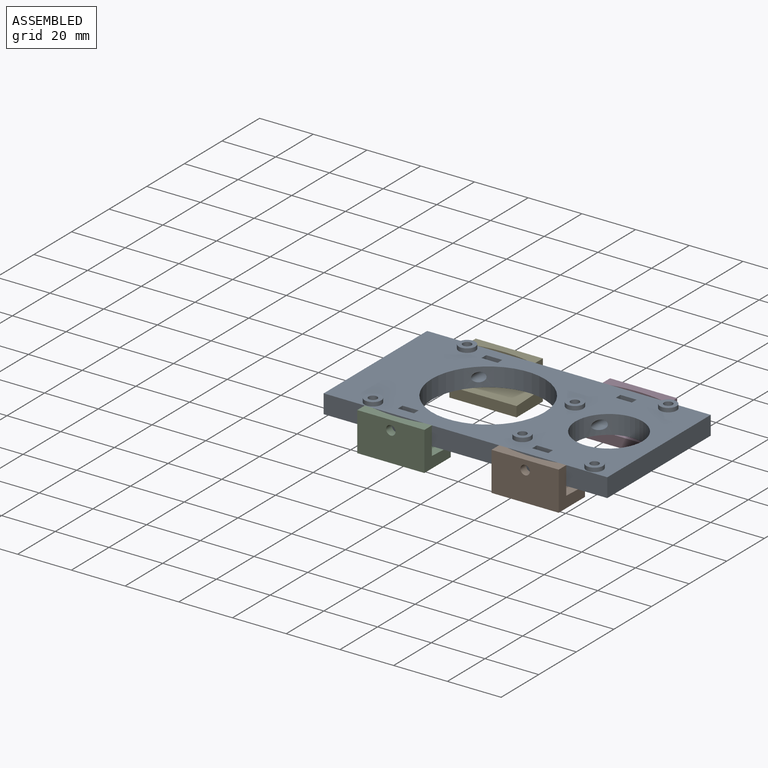
[diagram: assembled view]
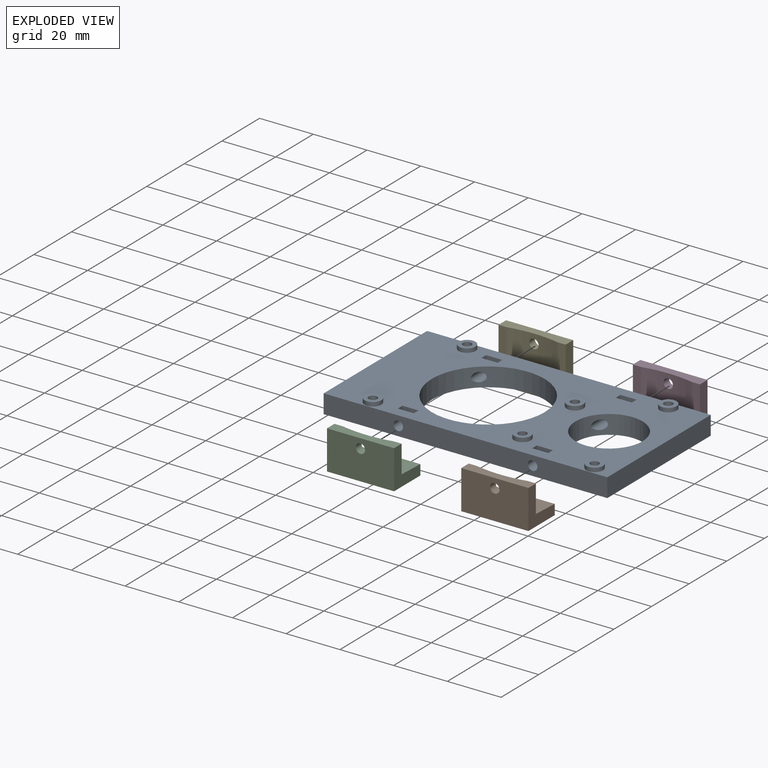
[diagram: exploded view]
GUIDED TOUR — MATED ASSEMBLY (Onshape document 38e5f879f7167fd461e94f2d, AutoMate assembly 38e5f879f7167fd461e94f2d_ed4562f7a92f10df959cbdb5_5030c0e394af5ca3f99093f5_default)

This assembly has 5 components, labeled P0..P4 below (a component is one placed occurrence of a part; the same part can appear more than once), held together by 4 mates. A mate is a constraint between two components; its type names the relative motion it leaves free:
  FASTENED — locks the two components together rigidly (no relative motion).
Axis/direction vectors are unit vectors and 'through' points are millimeter coordinates, both in the assembly's world frame.

MATES
  1. FASTENED "Fastened 1": P1 <-> P0, direction (0.000, -1.000, 0.000) through (67.82, -24.13, 6.29) mm
  2. FASTENED "Fastened 2": P2 <-> P0, direction (0.000, -1.000, 0.000) through (17.82, -24.13, 6.29) mm
  3. FASTENED "Fastened 3": P4 <-> P0, direction (0.000, 1.000, 0.000) through (17.82, 38.87, 6.29) mm
  4. FASTENED "Fastened 4": P3 <-> P0, direction (0.000, 1.000, 0.000) through (67.82, 38.87, 6.29) mm

ASSEMBLY ORDER
  1. P4 — the base component [order verified]
  2. P3 [order verified]
  3. P2 [order verified]
  4. P1 [order verified]
  5. P0 [order verified]
Order-tag legend:
  [order verified] — this step's position reverses a verified removal order: the component was checked to insert without passing through the ones already placed.

Of the 5 components, 5 carry the full construction recipe — the FeatureScript program that regenerates the part's solid from scratch; the rest are supplied as boundary geometry only.
Each toured component is shown spotlighted twice — in the assembled view, then in the exploded view, where a leader line traces a displaced component back to its assembled socket (saturated green if recipe-attached, orange if geometry-only; every other component desaturated gray) — followed by its recipe or geometry summary and the mates that hold it.
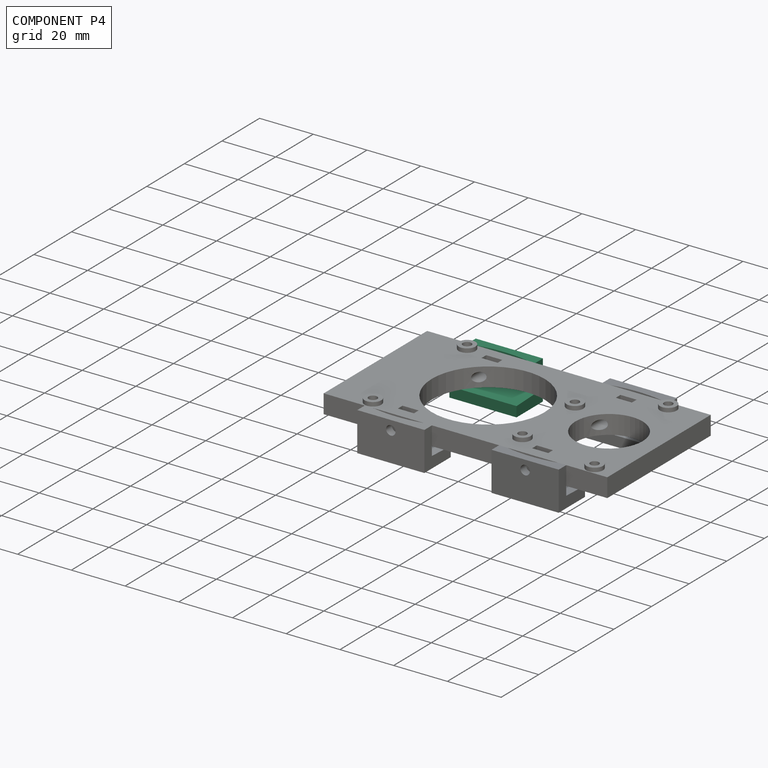
[diagram: component P4 — assembled]
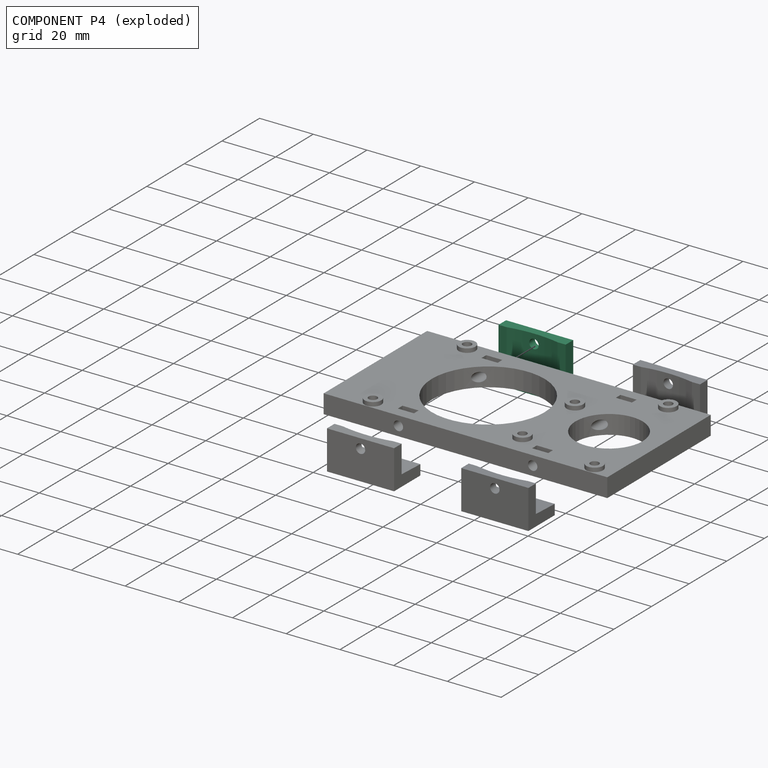
[diagram: component P4 — exploded]
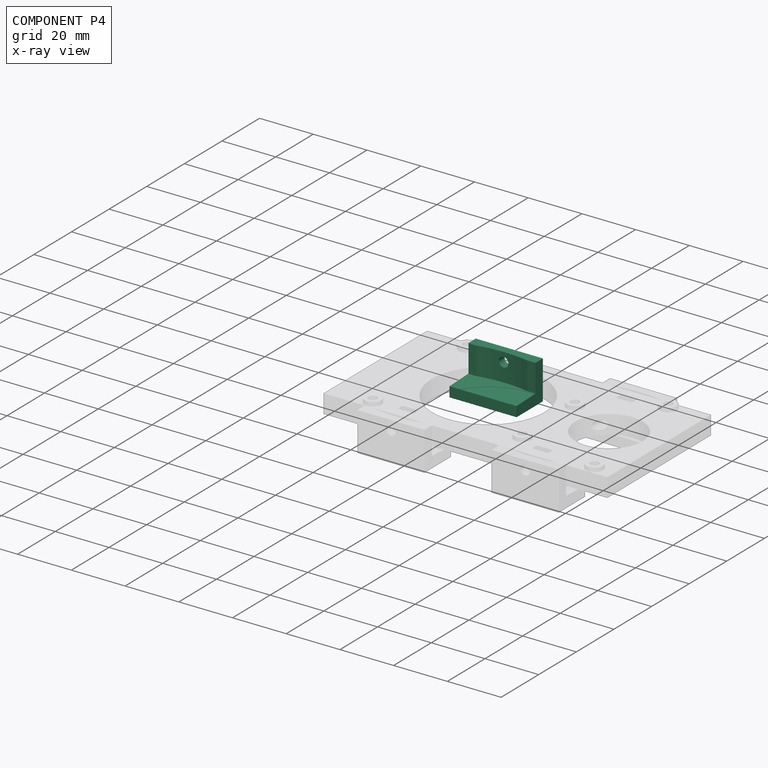
[diagram: component P4 — x-ray view]
COMPONENT P4 — same part as P1 (CADFS 00325363); its construction recipe is shown at P1.
Held by: FASTENED mate "Fastened 3" to P0.
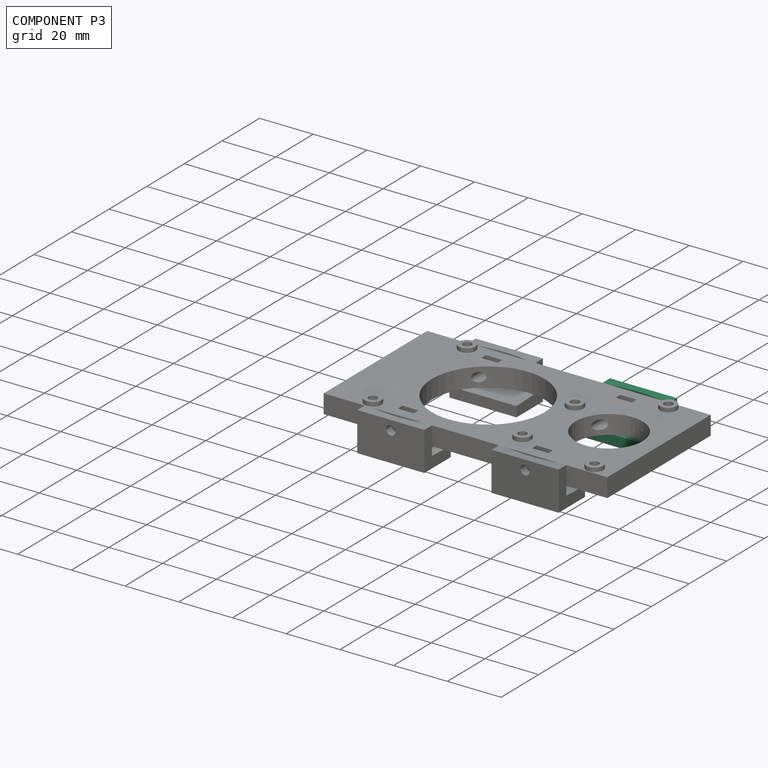
[diagram: component P3 — assembled]
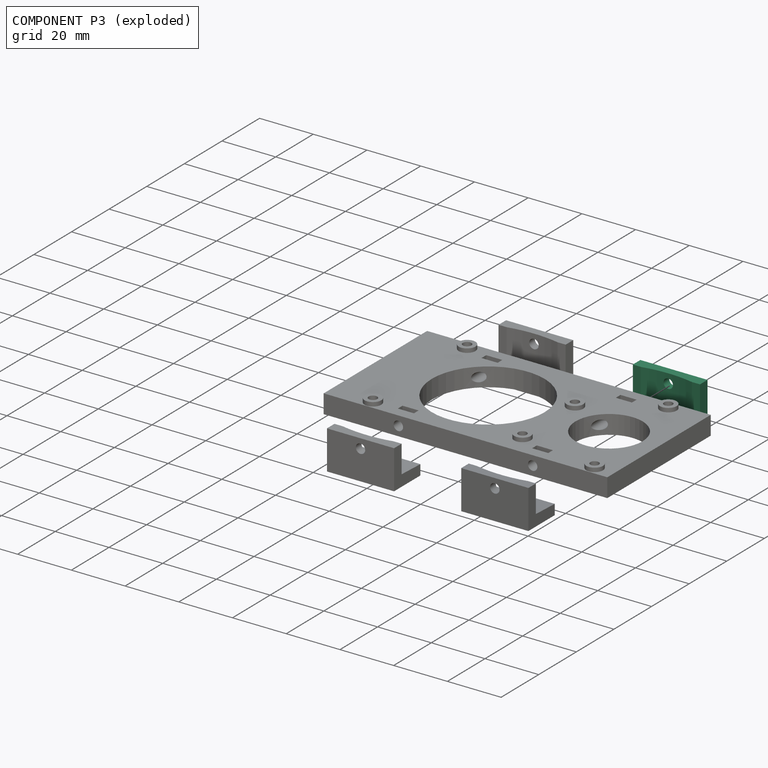
[diagram: component P3 — exploded]
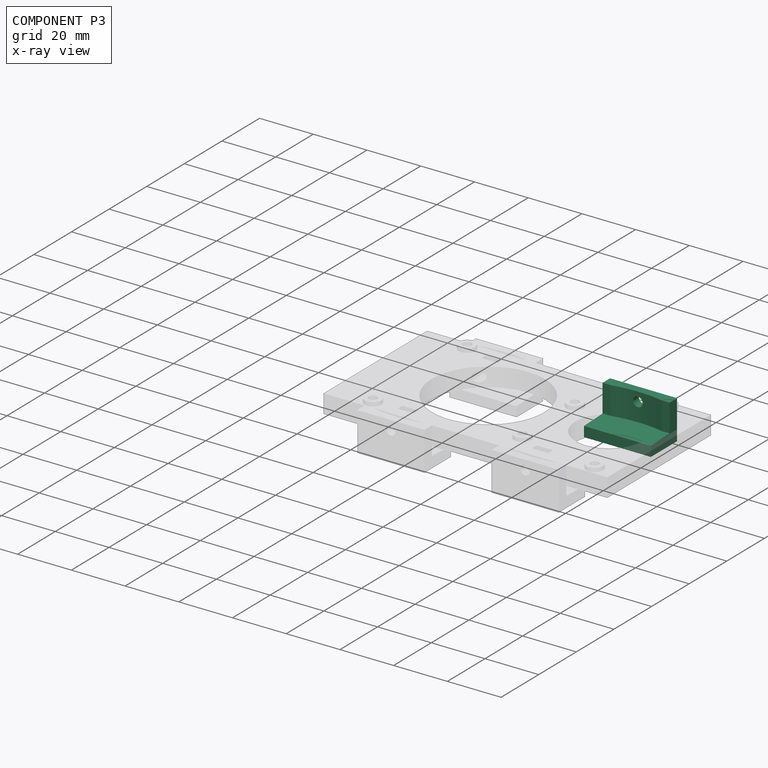
[diagram: component P3 — x-ray view]
COMPONENT P3 — same part as P1 (CADFS 00325363); its construction recipe is shown at P1.
Held by: FASTENED mate "Fastened 4" to P0.
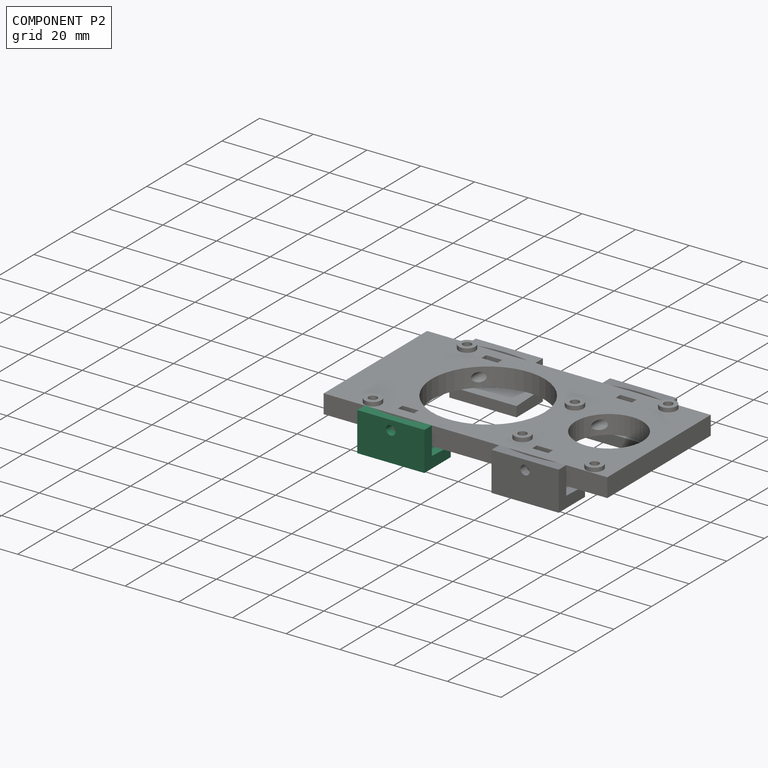
[diagram: component P2 — assembled]
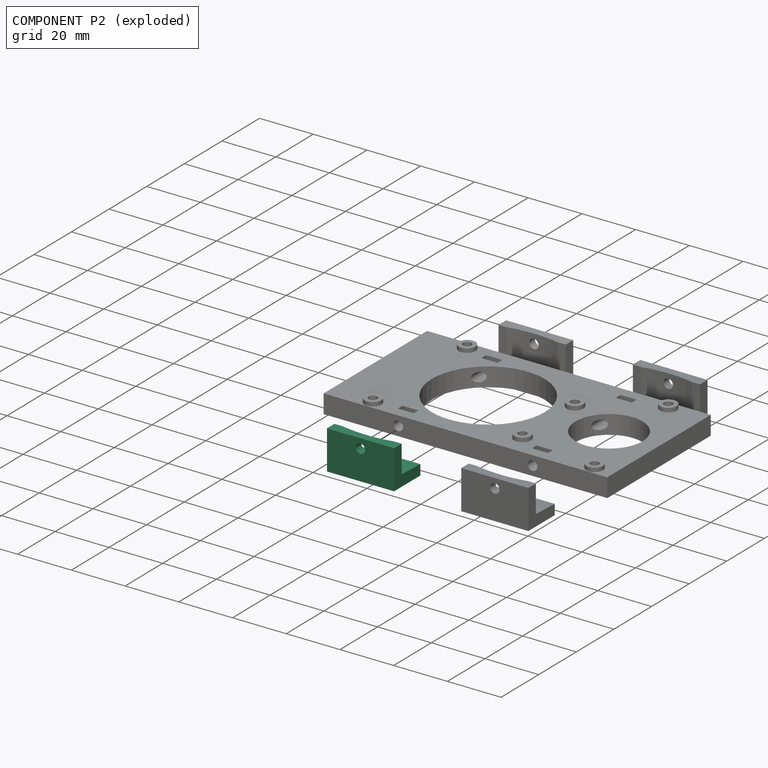
[diagram: component P2 — exploded]
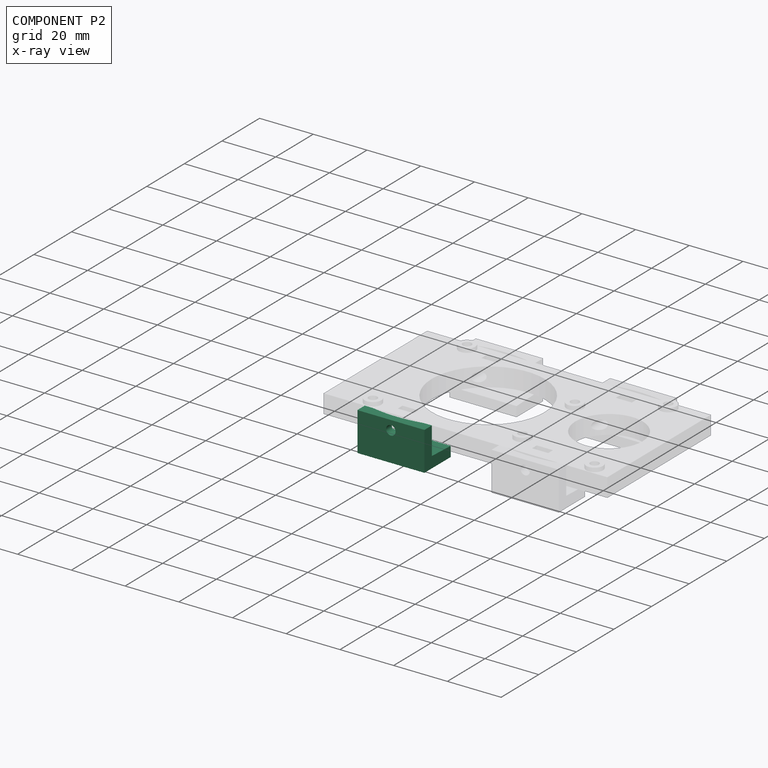
[diagram: component P2 — x-ray view]
COMPONENT P2 — same part as P1 (CADFS 00325363); its construction recipe is shown at P1.
Held by: FASTENED mate "Fastened 2" to P0.
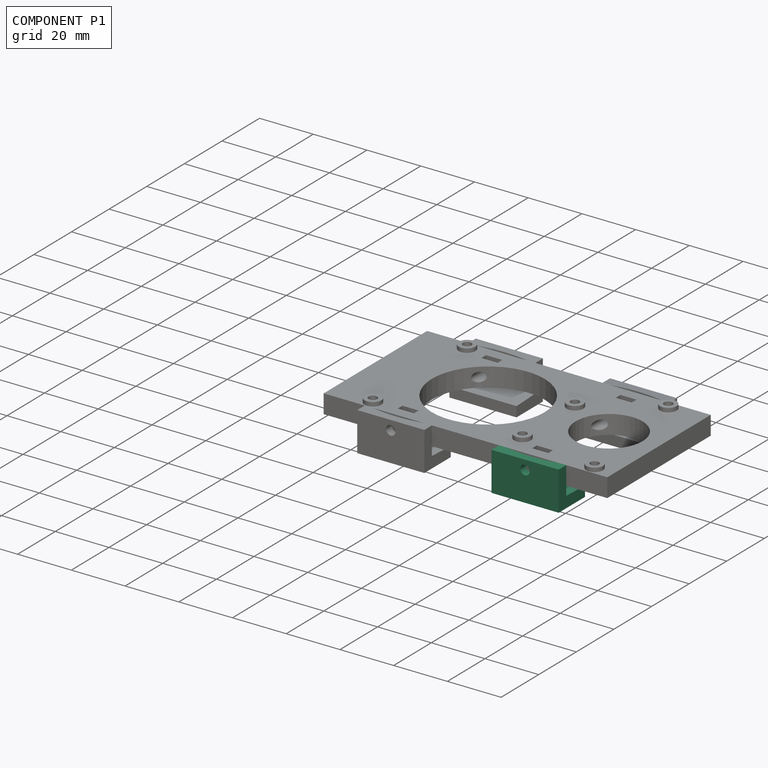
[diagram: component P1 — assembled]
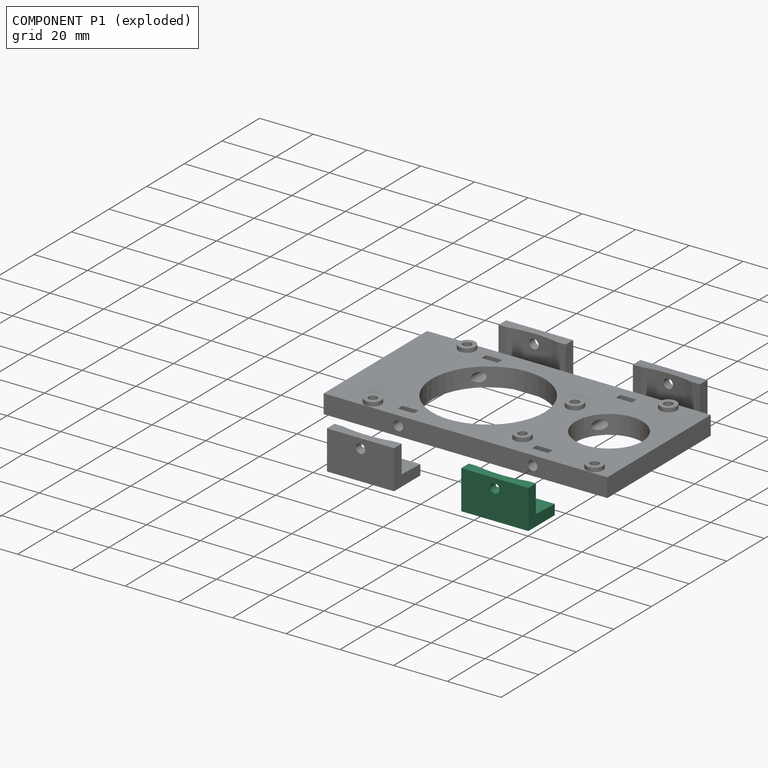
[diagram: component P1 — exploded]
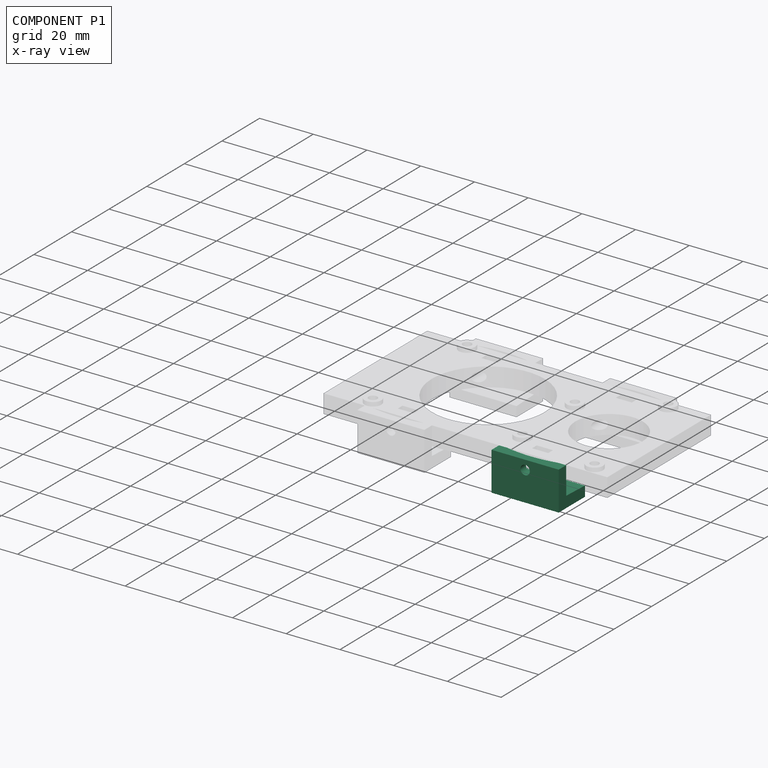
[diagram: component P1 — x-ray view]
COMPONENT P1 — recipe-attached (CADFS 00325363, mesh-verified: the recipe's output STEP matches this component's geometry to below the mesh-comparison resolution (tessellation chordal tolerance ~0.0482 mm)).
Held by: FASTENED mate "Fastened 1" to P0.
Construction recipe (FeatureScript — the CAD program that rebuilds this solid; sketch coordinates are in the units given by the * unit suffixes, e.g. mm):

FeatureScript 1511;
import(path : "onshape/std/geometry.fs", version : "1511.0");
import(path : "onshape/std/common.fs", version : "1511.0");
const mm = millimeter;
const VERTEX = EntityType.VERTEX;
const EDGE = EntityType.EDGE;
const FACE = EntityType.FACE;
const BODY = EntityType.BODY;
function v(x, y){return vector(x, y);}
function OD(order){return orderDisambiguation(order);}
function OSD(set){return originalSetDisambiguation(set);}
function TD(topology){return topologyDisambiguation(topology);}
function TDD(query){return trueDependencyDisambiguation(query);}
function sQuery(a, b, c) {return sketchEntityQuery(a, b, c);}

annotation { "Feature Type Name" : "Feature", "Feature Type Description" : "" }
export const myFeature = defineFeature(function(context is Context, id is Id, definition is map)
    precondition{}
    {
        {
            var Q0;
            Q0=qCreatedBy(makeId("Front.planeOp"),FACE);
            var sketch = newSketch(context, id + "F0", { "sketchPlane" : qUnion([Q0])});
            skLineSegment(sketch, "E0", {"start": v(0, 0) * mm, "end": v(0, 14.5) * mm});
            skLineSegment(sketch, "E1", {"start": v(0, 14.5) * mm, "end": v(4, 14.5) * mm});
            skLineSegment(sketch, "E2", {"start": v(4, 14.5) * mm, "end": v(4, 4.2) * mm});
            skLineSegment(sketch, "E3", {"start": v(14, 3.8) * mm, "end": v(14, 0) * mm});
            skLineSegment(sketch, "E4", {"start": v(14, 0) * mm, "end": v(0, 0) * mm});
            skLineSegment(sketch, "E5", {"start": v(0, 7.5) * mm, "end": v(4, 7.5) * mm, "construction": true});
            skLineSegment(sketch, "E6", {"start": v(4, 4.2) * mm, "end": v(14, 3.8) * mm});
            skLineSegment(sketch, "E7", {"start": v(0, 4) * mm, "end": v(9, 4) * mm, "construction": true});
            skSolve(sketch);
        }
        {
            var Q0;
            Q0 = qSketchRegion(id + "F0", true);
            extrude(context, id + "F1", {"entities" : qUnion([Q0]), "depth" : 25 * mm});
        }
        {
            var Q0;
            Q0=makeQuery(id+"F1.opExtrude","SWEPT_FACE",FACE,{"disambiguationData":[OSD([sQuery(id+"F0.wireOp",EDGE,"E0")])]});
            var sketch = newSketch(context, id + "F2", { "sketchPlane" : qUnion([Q0])});
            skLineSegment(sketch, "E8", {"start": v(12.5, 14.5) * mm, "end": v(12.5, 0) * mm, "construction": true});
            skCircle(sketch, "E9", {"center": v(12.5, 11) * mm, "radius": 1.75 * mm});
            skSolve(sketch);
        }
        {
            var Q0;
            Q0 = qSketchRegion(id + "F2", true);
            extrude(context, id + "F3", {"entities" : qUnion([Q0]), "operationType" : NewBodyOperationType.REMOVE, "endBound" : BoundingType.THROUGH_ALL, "oppositeDirection" : true, "depth" : 25 * mm});
        }
        {
            var Q0;
            Q0=makeQuery(id+"F1.opExtrude","SWEPT_FACE",FACE,{"disambiguationData":[OSD([sQuery(id+"F0.wireOp",EDGE,"E1")])]});
            var sketch = newSketch(context, id + "F4", { "sketchPlane" : qUnion([Q0])});
            skLineSegment(sketch, "E10", {"start": v(4, 0) * mm, "end": v(4, -3) * mm, "construction": true});
            skLineSegment(sketch, "E11", {"start": v(4, -3) * mm, "end": v(4, -22) * mm});
            skLineSegment(sketch, "E12", {"start": v(4, -22) * mm, "end": v(4, -25) * mm, "construction": true});
            skArc(sketch, "E13", {"start": v(4, -3) * mm, "mid": v(3, -12.5) * mm, "end": v(4, -22) * mm});
            skSolve(sketch);
        }
        {
            var Q0;
            Q0 = qSketchRegion(id + "F4", true);
            var Q1;
            Q1=makeQuery(id+"F1.opExtrude","CAP_VERTEX",VERTEX,{"disambiguationData":[OSD([sQuery(id+"F0.wireOp",EDGE,"E2"),sQuery(id+"F0.wireOp",EDGE,"E6")])],"isStart":false});
            extrude(context, id + "F5", {"entities" : qUnion([Q0]), "operationType" : NewBodyOperationType.REMOVE, "endBound" : BoundingType.UP_TO_VERTEX, "oppositeDirection" : true, "endBoundEntityVertex" : qUnion([Q1]), "depth" : 25 * mm});
        }
    });
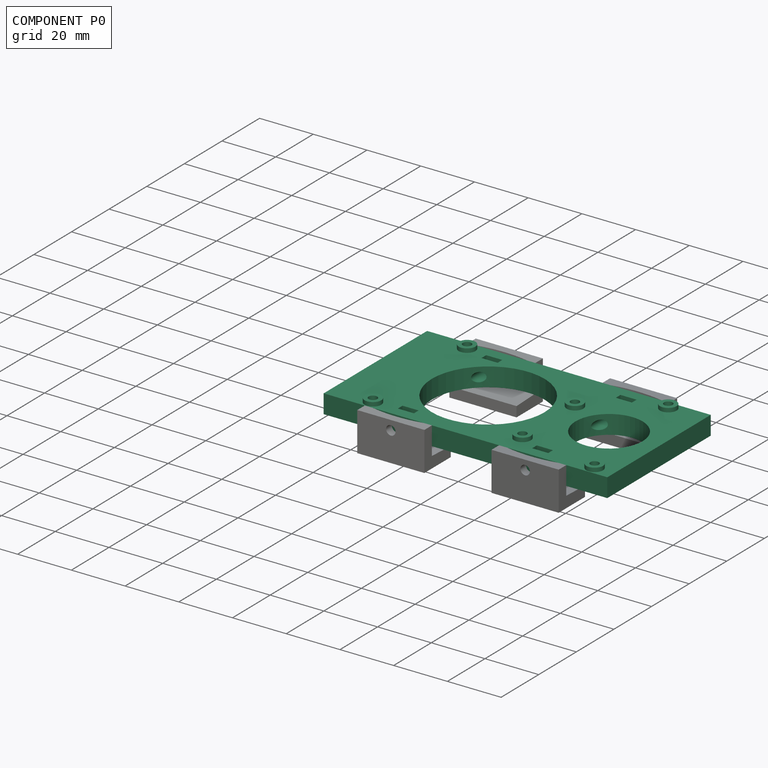
[diagram: component P0 — assembled]
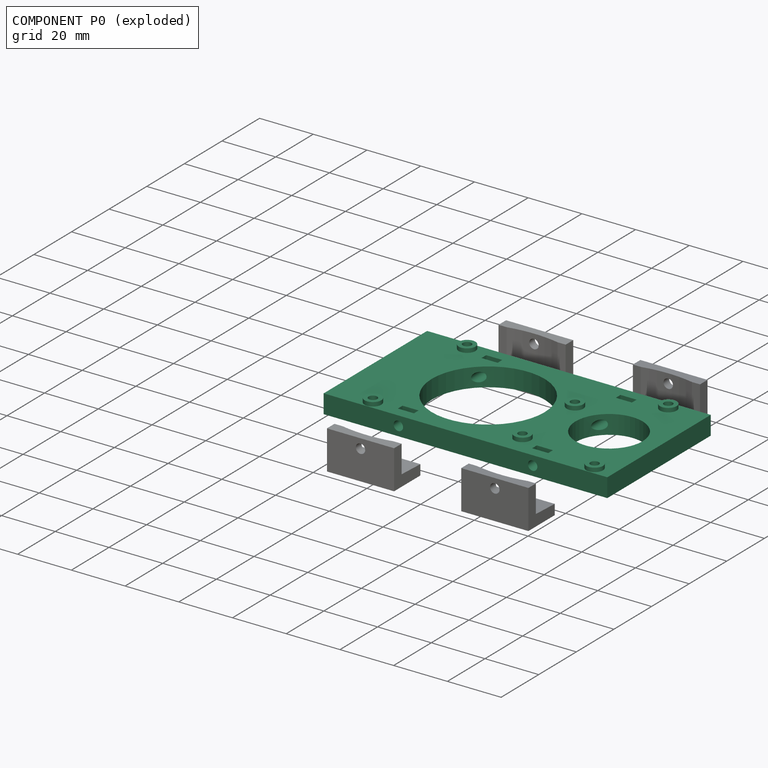
[diagram: component P0 — exploded]
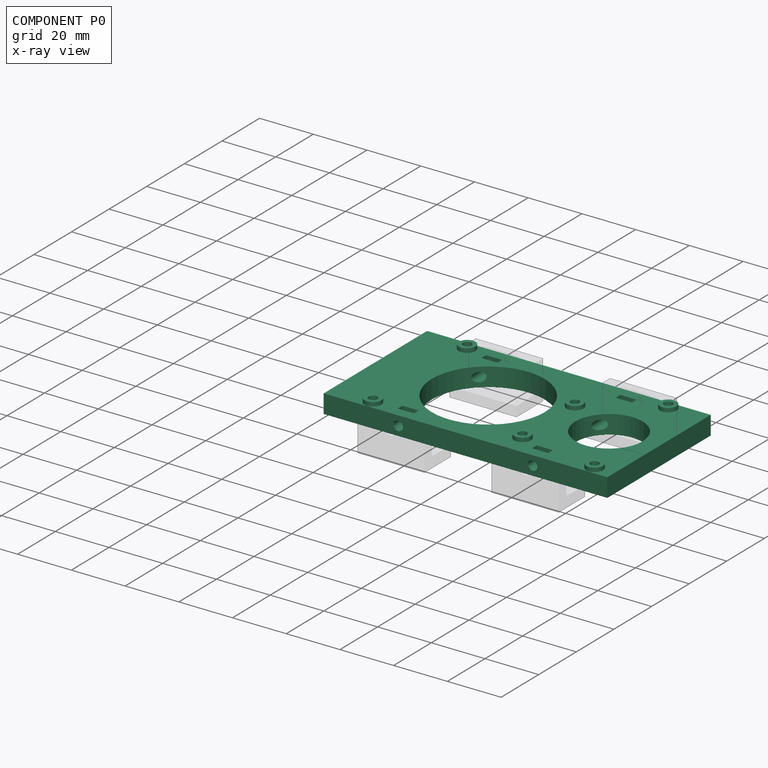
[diagram: component P0 — x-ray view]
COMPONENT P0 — recipe-attached (CADFS 00325362, mesh-verified: the recipe's output STEP matches this component's geometry to below the mesh-comparison resolution (tessellation chordal tolerance ~0.179 mm)).
Held by: FASTENED mate "Fastened 1" to P1; FASTENED mate "Fastened 2" to P2; FASTENED mate "Fastened 3" to P4; FASTENED mate "Fastened 4" to P3.
Construction recipe (FeatureScript — the CAD program that rebuilds this solid; sketch coordinates are in the units given by the * unit suffixes, e.g. mm):

FeatureScript 1511;
import(path : "onshape/std/geometry.fs", version : "1511.0");
import(path : "onshape/std/common.fs", version : "1511.0");
const mm = millimeter;
const VERTEX = EntityType.VERTEX;
const EDGE = EntityType.EDGE;
const FACE = EntityType.FACE;
const BODY = EntityType.BODY;
function v(x, y){return vector(x, y);}
function OD(order){return orderDisambiguation(order);}
function OSD(set){return originalSetDisambiguation(set);}
function TD(topology){return topologyDisambiguation(topology);}
function TDD(query){return trueDependencyDisambiguation(query);}
function sQuery(a, b, c) {return sketchEntityQuery(a, b, c);}

annotation { "Feature Type Name" : "Feature", "Feature Type Description" : "" }
export const myFeature = defineFeature(function(context is Context, id is Id, definition is map)
    precondition{}
    {
        {
            var Q0;
            Q0=qCreatedBy(makeId("Top.planeOp"),FACE);
            var sketch = newSketch(context, id + "F0", { "sketchPlane" : qUnion([Q0])});
            skLineSegment(sketch, "E0.bottom", {"start": v(0, 0) * mm, "end": v(101.6, 0) * mm, "construction": true});
            skLineSegment(sketch, "E0.top", {"start": v(0, 53.3) * mm, "end": v(101.6, 53.3) * mm, "construction": true});
            skLineSegment(sketch, "E0.left", {"start": v(0, 0) * mm, "end": v(0, 53.3) * mm, "construction": true});
            skLineSegment(sketch, "E0.right", {"start": v(101.6, 0) * mm, "end": v(101.6, 53.3) * mm, "construction": true});
            skCircle(sketch, "E1", {"center": v(15.3, 50.7) * mm, "radius": 1.6 * mm});
            skCircle(sketch, "E2", {"center": v(90.2, 50.7) * mm, "radius": 1.6 * mm});
            skCircle(sketch, "E3", {"center": v(66.1, 35.5) * mm, "radius": 1.6 * mm});
            skCircle(sketch, "E4", {"center": v(66.1, 7.6) * mm, "radius": 1.6 * mm});
            skCircle(sketch, "E5", {"center": v(96.52, 2.5) * mm, "radius": 1.6 * mm});
            skCircle(sketch, "E6", {"center": v(14, 2.5) * mm, "radius": 1.6 * mm});
            skLineSegment(sketch, "E7.bottom", {"start": v(-2, 54.15) * mm, "end": v(103.6, 54.15) * mm});
            skLineSegment(sketch, "E7.top", {"start": v(-2, -0.85) * mm, "end": v(103.6, -0.85) * mm});
            skLineSegment(sketch, "E7.left", {"start": v(-2, 54.15) * mm, "end": v(-2, -0.85) * mm});
            skLineSegment(sketch, "E7.right", {"start": v(103.6, 54.15) * mm, "end": v(103.6, -0.85) * mm});
            skLineSegment(sketch, "E8", {"start": v(0, 0) * mm, "end": v(0, -0.85) * mm, "construction": true});
            skLineSegment(sketch, "E9", {"start": v(0, 53.3) * mm, "end": v(0, 54.15) * mm, "construction": true});
            skLineSegment(sketch, "E10", {"start": v(0, 0) * mm, "end": v(-2, 0) * mm, "construction": true});
            skLineSegment(sketch, "E11", {"start": v(101.6, 0) * mm, "end": v(103.6, 0) * mm, "construction": true});
            skCircle(sketch, "E12", {"center": v(40, 26.65) * mm, "radius": 21 * mm});
            skPoint(sketch, "E12.centerSnap0", {"position": v(0, 26.65) * mm});
            skCircle(sketch, "E13", {"center": v(85, 26.65) * mm, "radius": 12.5 * mm});
            skPoint(sketch, "E13.centerSnap0", {"position": v(101.6, 26.65) * mm});
            skSolve(sketch);
        }
        {
            var Q0;
            Q0 = qSketchRegion(id + "F0", true);
            extrude(context, id + "F1", {"entities" : qUnion([Q0]), "depth" : 7 * mm});
        }
        {
            var Q0;
            Q0=makeQuery(id+"F1.opExtrude","CAP_FACE",FACE,{"disambiguationData":[OSD([sQuery(id+"F0.wireOp",EDGE,"E1"),sQuery(id+"F0.wireOp",EDGE,"E2"),sQuery(id+"F0.wireOp",EDGE,"E3"),sQuery(id+"F0.wireOp",EDGE,"E4"),sQuery(id+"F0.wireOp",EDGE,"E5"),sQuery(id+"F0.wireOp",EDGE,"E6"),sQuery(id+"F0.wireOp",EDGE,"E7.bottom"),sQuery(id+"F0.wireOp",EDGE,"E7.top"),sQuery(id+"F0.wireOp",EDGE,"E7.left"),sQuery(id+"F0.wireOp",EDGE,"E7.right")])],"isStart":false});
            var sketch = newSketch(context, id + "F2", { "sketchPlane" : qUnion([Q0])});
            skCircle(sketch, "E14", {"center": v(15.3, 50.7) * mm, "radius": 3.1 * mm});
            skCircle(sketch, "E15", {"center": v(90.2, 50.7) * mm, "radius": 3.1 * mm});
            skCircle(sketch, "E16", {"center": v(66.1, 35.5) * mm, "radius": 3.1 * mm});
            skCircle(sketch, "E17", {"center": v(66.1, 7.6) * mm, "radius": 3.1 * mm});
            skCircle(sketch, "E18", {"center": v(96.52, 2.5) * mm, "radius": 3.1 * mm});
            skCircle(sketch, "E19", {"center": v(14, 2.5) * mm, "radius": 3.1 * mm});
            skCircle(sketch, "E20.0", {"center": v(15.3, 50.7) * mm, "radius": 1.6 * mm});
            skCircle(sketch, "E21.0", {"center": v(66.1, 35.5) * mm, "radius": 1.6 * mm});
            skCircle(sketch, "E22.1", {"center": v(14, 2.5) * mm, "radius": 1.6 * mm});
            skCircle(sketch, "E23.2", {"center": v(66.1, 7.6) * mm, "radius": 1.6 * mm});
            skCircle(sketch, "E24.0", {"center": v(90.2, 50.7) * mm, "radius": 1.6 * mm});
            skCircle(sketch, "E25.0", {"center": v(96.52, 2.5) * mm, "radius": 1.6 * mm});
            skSolve(sketch);
        }
        {
            var Q0;
            Q0 = qSketchRegion(id + "F2", true);
            extrude(context, id + "F3", {"entities" : qUnion([Q0]), "operationType" : NewBodyOperationType.ADD, "depth" : 1.5 * mm});
        }
        {
            var Q0;
            Q0=makeQuery(id+"F1.opExtrude","CAP_FACE",FACE,{"disambiguationData":[OSD([sQuery(id+"F0.wireOp",EDGE,"E1"),sQuery(id+"F0.wireOp",EDGE,"E2"),sQuery(id+"F0.wireOp",EDGE,"E3"),sQuery(id+"F0.wireOp",EDGE,"E4"),sQuery(id+"F0.wireOp",EDGE,"E5"),sQuery(id+"F0.wireOp",EDGE,"E6"),sQuery(id+"F0.wireOp",EDGE,"E7.bottom"),sQuery(id+"F0.wireOp",EDGE,"E7.top"),sQuery(id+"F0.wireOp",EDGE,"E7.left"),sQuery(id+"F0.wireOp",EDGE,"E7.right")])],"isStart":false});
            var sketch = newSketch(context, id + "F4", { "sketchPlane" : qUnion([Q0])});
            skLineSegment(sketch, "E26.bottom", {"start": v(78.8, 50.15) * mm, "end": v(72.8, 50.15) * mm});
            skLineSegment(sketch, "E26.top", {"start": v(78.8, 47.65) * mm, "end": v(72.8, 47.65) * mm});
            skLineSegment(sketch, "E26.left", {"start": v(78.8, 50.15) * mm, "end": v(78.8, 47.65) * mm});
            skLineSegment(sketch, "E26.right", {"start": v(72.8, 50.15) * mm, "end": v(72.8, 47.65) * mm});
            skLineSegment(sketch, "E27.bottom", {"start": v(78.8, 5.65) * mm, "end": v(72.8, 5.65) * mm});
            skLineSegment(sketch, "E27.top", {"start": v(78.8, 3.15) * mm, "end": v(72.8, 3.15) * mm});
            skLineSegment(sketch, "E27.left", {"start": v(78.8, 5.65) * mm, "end": v(78.8, 3.15) * mm});
            skLineSegment(sketch, "E27.right", {"start": v(72.8, 5.65) * mm, "end": v(72.8, 3.15) * mm});
            skLineSegment(sketch, "E28.bottom", {"start": v(28.8, 50.15) * mm, "end": v(22.8, 50.15) * mm});
            skLineSegment(sketch, "E28.top", {"start": v(28.8, 47.65) * mm, "end": v(22.8, 47.65) * mm});
            skLineSegment(sketch, "E28.left", {"start": v(28.8, 50.15) * mm, "end": v(28.8, 47.65) * mm});
            skLineSegment(sketch, "E28.right", {"start": v(22.8, 50.15) * mm, "end": v(22.8, 47.65) * mm});
            skLineSegment(sketch, "E29.bottom", {"start": v(28.8, 5.65) * mm, "end": v(22.8, 5.65) * mm});
            skLineSegment(sketch, "E29.top", {"start": v(28.8, 3.15) * mm, "end": v(22.8, 3.15) * mm});
            skLineSegment(sketch, "E29.left", {"start": v(28.8, 5.65) * mm, "end": v(28.8, 3.15) * mm});
            skLineSegment(sketch, "E29.right", {"start": v(22.8, 5.65) * mm, "end": v(22.8, 3.15) * mm});
            skLineSegment(sketch, "E30", {"start": v(75.8, 54.15) * mm, "end": v(75.8, -0.85) * mm, "construction": true});
            skPoint(sketch, "E30.startSnap0", {"position": v(75.8, 50.15) * mm});
            skPoint(sketch, "E30.endSnap0", {"position": v(75.8, 3.15) * mm});
            skLineSegment(sketch, "E31", {"start": v(25.8, 54.15) * mm, "end": v(25.8, 0) * mm, "construction": true});
            skPoint(sketch, "E31.startSnap0", {"position": v(25.8, 47.65) * mm});
            skPoint(sketch, "E31.endSnap0", {"position": v(25.8, 3.15) * mm});
            skLineSegment(sketch, "E32", {"start": v(72.8, 50.15) * mm, "end": v(28.8, 50.15) * mm, "construction": true});
            skLineSegment(sketch, "E33", {"start": v(72.8, 3.15) * mm, "end": v(28.8, 3.15) * mm, "construction": true});
            skLineSegment(sketch, "E34", {"start": v(78.8, 50.15) * mm, "end": v(78.8, 54.15) * mm, "construction": true});
            skLineSegment(sketch, "E35", {"start": v(78.8, 3.15) * mm, "end": v(78.8, -0.85) * mm, "construction": true});
            skLineSegment(sketch, "E36", {"start": v(25.8, 27.08) * mm, "end": v(-2, 27.08) * mm, "construction": true});
            skLineSegment(sketch, "E37", {"start": v(75.8, 26.65) * mm, "end": v(103.6, 26.65) * mm, "construction": true});
            skSolve(sketch);
        }
        {
            var Q0;
            Q0 = qSketchRegion(id + "F4", true);
            extrude(context, id + "F5", {"entities" : qUnion([Q0]), "operationType" : NewBodyOperationType.REMOVE, "endBound" : BoundingType.THROUGH_ALL, "oppositeDirection" : true, "depth" : 25 * mm});
        }
        {
            var Q0;
            Q0=makeQuery(id+"F1.opExtrude","CAP_FACE",FACE,{"disambiguationData":[OSD([sQuery(id+"F0.wireOp",EDGE,"E1"),sQuery(id+"F0.wireOp",EDGE,"E2"),sQuery(id+"F0.wireOp",EDGE,"E3"),sQuery(id+"F0.wireOp",EDGE,"E4"),sQuery(id+"F0.wireOp",EDGE,"E5"),sQuery(id+"F0.wireOp",EDGE,"E6"),sQuery(id+"F0.wireOp",EDGE,"E7.bottom"),sQuery(id+"F0.wireOp",EDGE,"E7.top"),sQuery(id+"F0.wireOp",EDGE,"E7.left"),sQuery(id+"F0.wireOp",EDGE,"E7.right")])],"isStart":true});
            var sketch = newSketch(context, id + "F6", { "sketchPlane" : qUnion([Q0])});
            skCircle(sketch, "E38.cCircle", {"center": v(14, -2.5) * mm, "radius": 3 * mm, "construction": true});
            skLineSegment(sketch, "E38.0", {"start": v(15.73, -5.5) * mm, "end": v(12.27, -5.5) * mm});
            skLineSegment(sketch, "E38.1", {"start": v(12.27, -5.5) * mm, "end": v(10.54, -2.5) * mm});
            skLineSegment(sketch, "E38.2", {"start": v(10.54, -2.5) * mm, "end": v(12.27, 0.5) * mm});
            skLineSegment(sketch, "E38.3", {"start": v(12.27, 0.5) * mm, "end": v(15.73, 0.5) * mm});
            skLineSegment(sketch, "E38.4", {"start": v(15.73, 0.5) * mm, "end": v(17.46, -2.5) * mm});
            skLineSegment(sketch, "E38.5", {"start": v(17.46, -2.5) * mm, "end": v(15.73, -5.5) * mm});
            skCircle(sketch, "E39.cCircle", {"center": v(96.52, -2.5) * mm, "radius": 3 * mm, "construction": true});
            skLineSegment(sketch, "E39.0", {"start": v(94.79, 0.5) * mm, "end": v(98.25, 0.5) * mm});
            skLineSegment(sketch, "E39.1", {"start": v(98.25, 0.5) * mm, "end": v(99.98, -2.5) * mm});
            skLineSegment(sketch, "E39.2", {"start": v(99.98, -2.5) * mm, "end": v(98.25, -5.5) * mm});
            skLineSegment(sketch, "E39.3", {"start": v(98.25, -5.5) * mm, "end": v(94.79, -5.5) * mm});
            skLineSegment(sketch, "E39.4", {"start": v(94.79, -5.5) * mm, "end": v(93.06, -2.5) * mm});
            skLineSegment(sketch, "E39.5", {"start": v(93.06, -2.5) * mm, "end": v(94.79, 0.5) * mm});
            skPoint(sketch, "E39.0.midPoint", {"position": v(96.52, 0.5) * mm});
            skCircle(sketch, "E40.cCircle", {"center": v(66.1, -7.6) * mm, "radius": 3 * mm, "construction": true});
            skLineSegment(sketch, "E40.0", {"start": v(63.1, -9.33) * mm, "end": v(63.1, -5.87) * mm});
            skLineSegment(sketch, "E40.1", {"start": v(63.1, -5.87) * mm, "end": v(66.1, -4.14) * mm});
            skLineSegment(sketch, "E40.2", {"start": v(66.1, -4.14) * mm, "end": v(69.1, -5.87) * mm});
            skLineSegment(sketch, "E40.3", {"start": v(69.1, -5.87) * mm, "end": v(69.1, -9.33) * mm});
            skLineSegment(sketch, "E40.4", {"start": v(69.1, -9.33) * mm, "end": v(66.1, -11.06) * mm});
            skLineSegment(sketch, "E40.5", {"start": v(66.1, -11.06) * mm, "end": v(63.1, -9.33) * mm});
            skPoint(sketch, "E40.0.midPoint", {"position": v(63.1, -7.6) * mm});
            skCircle(sketch, "E41.cCircle", {"center": v(66.1, -35.5) * mm, "radius": 3 * mm, "construction": true});
            skLineSegment(sketch, "E41.0", {"start": v(63.1, -37.23) * mm, "end": v(63.1, -33.77) * mm});
            skLineSegment(sketch, "E41.1", {"start": v(63.1, -33.77) * mm, "end": v(66.1, -32.04) * mm});
            skLineSegment(sketch, "E41.2", {"start": v(66.1, -32.04) * mm, "end": v(69.1, -33.77) * mm});
            skLineSegment(sketch, "E41.3", {"start": v(69.1, -33.77) * mm, "end": v(69.1, -37.23) * mm});
            skLineSegment(sketch, "E41.4", {"start": v(69.1, -37.23) * mm, "end": v(66.1, -38.96) * mm});
            skLineSegment(sketch, "E41.5", {"start": v(66.1, -38.96) * mm, "end": v(63.1, -37.23) * mm});
            skPoint(sketch, "E41.0.midPoint", {"position": v(63.1, -35.5) * mm});
            skCircle(sketch, "E42.cCircle", {"center": v(90.2, -50.7) * mm, "radius": 3 * mm, "construction": true});
            skLineSegment(sketch, "E42.0", {"start": v(88.47, -47.7) * mm, "end": v(91.93, -47.7) * mm});
            skLineSegment(sketch, "E42.1", {"start": v(91.93, -47.7) * mm, "end": v(93.66, -50.7) * mm});
            skLineSegment(sketch, "E42.2", {"start": v(93.66, -50.7) * mm, "end": v(91.93, -53.7) * mm});
            skLineSegment(sketch, "E42.3", {"start": v(91.93, -53.7) * mm, "end": v(88.47, -53.7) * mm});
            skLineSegment(sketch, "E42.4", {"start": v(88.47, -53.7) * mm, "end": v(86.74, -50.7) * mm});
            skLineSegment(sketch, "E42.5", {"start": v(86.74, -50.7) * mm, "end": v(88.47, -47.7) * mm});
            skPoint(sketch, "E42.0.midPoint", {"position": v(90.2, -47.7) * mm});
            skCircle(sketch, "E43.cCircle", {"center": v(15.3, -50.7) * mm, "radius": 3 * mm, "construction": true});
            skLineSegment(sketch, "E43.0", {"start": v(11.84, -50.7) * mm, "end": v(13.57, -47.7) * mm});
            skLineSegment(sketch, "E43.1", {"start": v(13.57, -47.7) * mm, "end": v(17.03, -47.7) * mm});
            skLineSegment(sketch, "E43.2", {"start": v(17.03, -47.7) * mm, "end": v(18.76, -50.7) * mm});
            skLineSegment(sketch, "E43.3", {"start": v(18.76, -50.7) * mm, "end": v(17.03, -53.7) * mm});
            skLineSegment(sketch, "E43.4", {"start": v(17.03, -53.7) * mm, "end": v(13.57, -53.7) * mm});
            skLineSegment(sketch, "E43.5", {"start": v(13.57, -53.7) * mm, "end": v(11.84, -50.7) * mm});
            skPoint(sketch, "E43.0.midPoint", {"position": v(12.7, -49.2) * mm});
            skSolve(sketch);
        }
        {
            var Q0;
            Q0 = qSketchRegion(id + "F6", true);
            extrude(context, id + "F7", {"entities" : qUnion([Q0]), "operationType" : NewBodyOperationType.REMOVE, "oppositeDirection" : true, "depth" : 4 * mm});
        }
        {
            var Q0;
            Q0=makeQuery(id+"F1.opExtrude","SWEPT_FACE",FACE,{"disambiguationData":[OSD([sQuery(id+"F0.wireOp",EDGE,"E7.bottom")])]});
            var sketch = newSketch(context, id + "F8", { "sketchPlane" : qUnion([Q0])});
            skPoint(sketch, "E44.0", {"position": v(-75.8, 7) * mm});
            skPoint(sketch, "E45.0", {"position": v(-25.8, 7) * mm});
            skLineSegment(sketch, "E46", {"start": v(-75.8, 7) * mm, "end": v(-75.8, 0) * mm, "construction": true});
            skLineSegment(sketch, "E47", {"start": v(-25.8, 7) * mm, "end": v(-25.8, 0) * mm, "construction": true});
            skLineSegment(sketch, "E48", {"start": v(-75.8, 3.5) * mm, "end": v(-25.8, 3.5) * mm, "construction": true});
            skCircle(sketch, "E49", {"center": v(-75.8, 3.5) * mm, "radius": 1.75 * mm});
            skCircle(sketch, "E50", {"center": v(-25.8, 3.5) * mm, "radius": 1.75 * mm});
            skSolve(sketch);
        }
        {
            var Q0;
            Q0 = qSketchRegion(id + "F8", true);
            extrude(context, id + "F9", {"entities" : qUnion([Q0]), "operationType" : NewBodyOperationType.REMOVE, "endBound" : BoundingType.THROUGH_ALL, "oppositeDirection" : true, "depth" : 25 * mm});
        }
    });
PROVENANCE & LICENSES
Assembly (occurrences, transforms, mates, per-part STEP geometry): AutoMate dataset, Zenodo record 7776208, CC0.
Construction recipes: CADFS (HuggingFace VladPyatov/CADFS, CC-BY-4.0, layered over the ABC dataset), FeatureScript reconstruction programs keyed by ABC model id.
Join: ABC meta listings map ABC model id -> Onshape documentId; within a shared document, parts are matched by geometric signature (bounding-box dims + volume at 0.1% relative tolerance, exact B-rep face/solid counts).
Verification: 5 of this assembly's 5 components carry a recipe attachment, and every attachment is mesh-verified: the CADFS STEP and the AutoMate member STEP were compared as meshes in their shared local frame (symmetric sampled-point-to-mesh distance); worst across the 5 attachments: below the mesh-comparison resolution (tessellation chordal tolerance ~0.179 mm) on a 119 mm part.
Renders: orthographic iso camera (az 35 / el 25); the floor grid conveys scale (grid pitch printed in each image; no ruler). In the exploded view each component is displaced by its stored offset vector: the offsets alone carry the explosion direction (mate normal/axis signs are not orientation cues and do not encode it), and separation distances are assigned per mate-chain, not proportionally to assembly-order depth.
